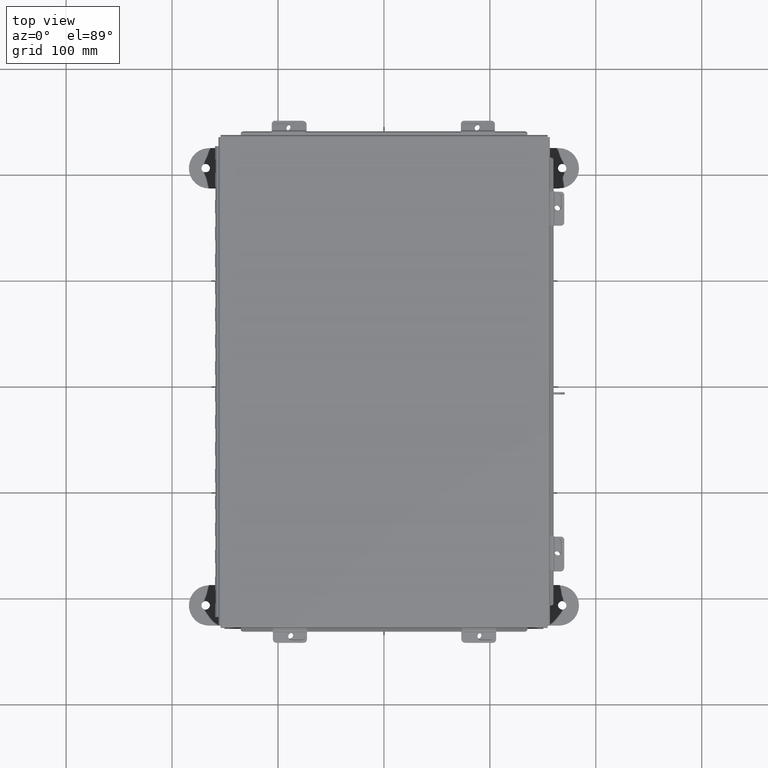
[diagram: clean part render]
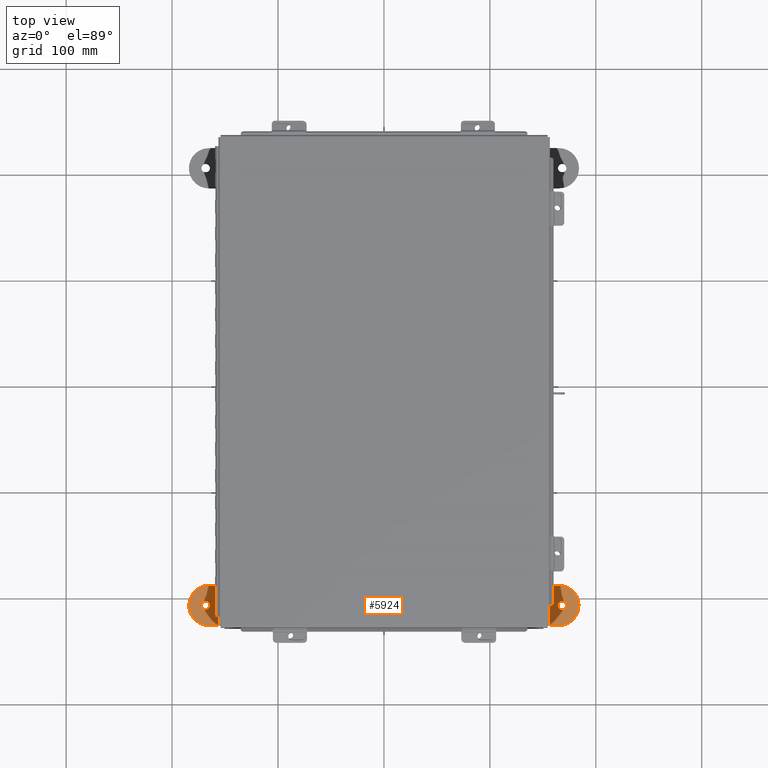
[diagram: same view with one face highlighted and labeled with its STEP entity id]
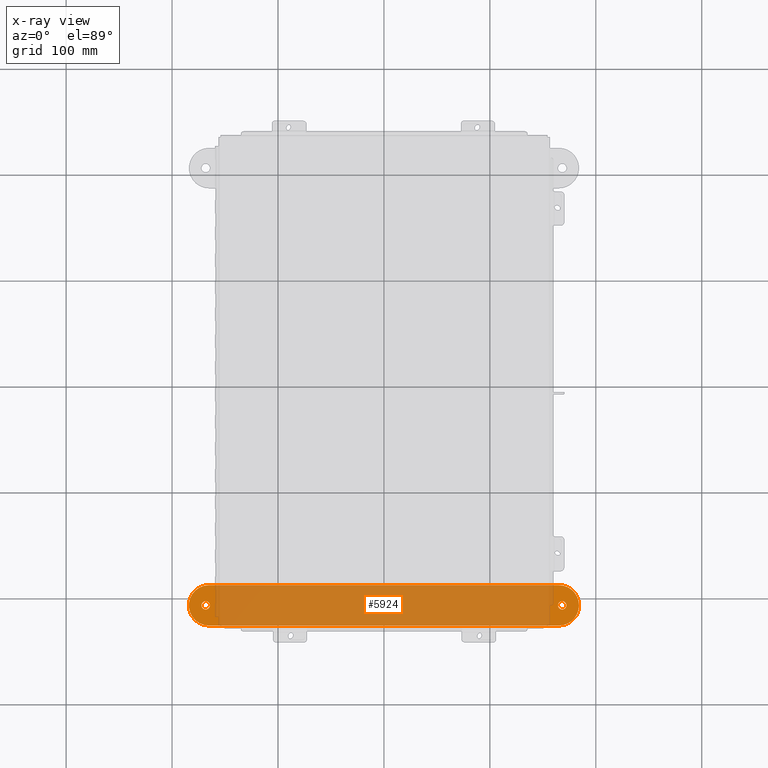
[diagram: x-ray of the same camera — body ghosted, the highlighted face saturated]
A machine part, top view. The second image highlights one B-rep face of the part: STEP entity #5924.
The next image is the same camera in x-ray: the body ghosted, the highlighted face saturated — about 89% of this face is hidden behind the body in this view.
In plain terms, the highlighted planar face has unit normal (0, 0, -1).
Its self-contained STEP definition (entity closure, byte-faithful):
#1440 = DIRECTION ( 'NONE',  ( -1.000000000000000000, 0.0000000000000000000, 0.0000000000000000000 ) ) ;
#1576 = CARTESIAN_POINT ( 'NONE',  ( 7.250000000000001800, 0.4120940649496122000, 0.0000000000000000000 ) ) ;
#1932 = CARTESIAN_POINT ( 'NONE',  ( 6.500000000000000000, 0.4120940649496122000, 0.0000000000000000000 ) ) ;
#2609 = DIRECTION ( 'NONE',  ( 0.0000000000000000000, 0.0000000000000000000, -1.000000000000000000 ) ) ;
#2762 = ORIENTED_EDGE ( 'NONE', *, *, #3056, .T. ) ;
#2858 = EDGE_CURVE ( 'NONE', #4962, #4669, #5933, .T. ) ;
#3029 = CIRCLE ( 'NONE', #17390, 0.7500000000000015500 ) ;
#3056 = EDGE_CURVE ( 'NONE', #18365, #15331, #4105, .T. ) ;
#3193 = EDGE_CURVE ( 'NONE', #3293, #17110, #8653, .T. ) ;
#3293 = VERTEX_POINT ( 'NONE', #3633 ) ;
#3471 = DIRECTION ( 'NONE',  ( -1.000000000000000000, 0.0000000000000000000, 0.0000000000000000000 ) ) ;
#3633 = CARTESIAN_POINT ( 'NONE',  ( -6.500000000000000000, -0.3379059350503871900, 0.0000000000000000000 ) ) ;
#3674 = CARTESIAN_POINT ( 'NONE',  ( 6.500000000000000000, -0.3379059350503894100, 0.0000000000000000000 ) ) ;
#3799 = ORIENTED_EDGE ( 'NONE', *, *, #10365, .T. ) ;
#3893 = CARTESIAN_POINT ( 'NONE',  ( -6.500000000000000000, 0.4120940649496122000, 0.0000000000000000000 ) ) ;
#4105 = CIRCLE ( 'NONE', #5367, 0.1564999999999992800 ) ;
#4435 = FACE_OUTER_BOUND ( 'NONE', #5103, .T. ) ;
#4495 = DIRECTION ( 'NONE',  ( -1.000000000000000000, 0.0000000000000000000, 0.0000000000000000000 ) ) ;
#4669 = VERTEX_POINT ( 'NONE', #14003 ) ;
#4784 = VECTOR ( 'NONE', #11639, 39.37007874015748100 ) ;
#4962 = VERTEX_POINT ( 'NONE', #10996 ) ;
#4978 = AXIS2_PLACEMENT_3D ( 'NONE', #13459, #16309, #14205 ) ;
#5103 = EDGE_LOOP ( 'NONE', ( #17207, #3799, #11926, #14903, #13732 ) ) ;
#5367 = AXIS2_PLACEMENT_3D ( 'NONE', #11253, #14852, #3471 ) ;
#5413 = CIRCLE ( 'NONE', #7450, 0.1564999999999992800 ) ;
#5924 = ADVANCED_FACE ( 'NONE', ( #4435, #12240, #15704 ), #12407, .F. ) ;
#5927 = CARTESIAN_POINT ( 'NONE',  ( -6.500000000000000000, -0.3379059350503871900, 0.0000000000000000000 ) ) ;
#5933 = CIRCLE ( 'NONE', #14558, 0.1564999999999992800 ) ;
#5944 = CARTESIAN_POINT ( 'NONE',  ( 6.468500000000001500, 0.4120940649496078200, 0.0000000000000000000 ) ) ;
#6035 = CIRCLE ( 'NONE', #6771, 0.7499999999999993300 ) ;
#6411 = DIRECTION ( 'NONE',  ( 1.000000000000000000, 0.0000000000000000000, 0.0000000000000000000 ) ) ;
#6617 = EDGE_CURVE ( 'NONE', #9677, #3293, #6035, .T. ) ;
#6686 = DIRECTION ( 'NONE',  ( 0.0000000000000000000, 0.0000000000000000000, 1.000000000000000000 ) ) ;
#6771 = AXIS2_PLACEMENT_3D ( 'NONE', #3893, #15210, #6411 ) ;
#6822 = DIRECTION ( 'NONE',  ( -1.000000000000000000, 0.0000000000000000000, 0.0000000000000000000 ) ) ;
#6895 = CIRCLE ( 'NONE', #11449, 0.7500000000000015500 ) ;
#6974 = CARTESIAN_POINT ( 'NONE',  ( 6.781499999999999400, 0.4120940649496078200, 0.0000000000000000000 ) ) ;
#7020 = ORIENTED_EDGE ( 'NONE', *, *, #17929, .F. ) ;
#7450 = AXIS2_PLACEMENT_3D ( 'NONE', #11172, #11961, #12299 ) ;
#7553 = CARTESIAN_POINT ( 'NONE',  ( -6.625000000000000900, 0.4120940649496078200, 0.0000000000000000000 ) ) ;
#7833 = DIRECTION ( 'NONE',  ( 1.000000000000000000, 0.0000000000000000000, 0.0000000000000000000 ) ) ;
#8329 = EDGE_CURVE ( 'NONE', #17110, #15628, #3029, .T. ) ;
#8653 = LINE ( 'NONE', #5927, #4784 ) ;
#9677 = VERTEX_POINT ( 'NONE', #18717 ) ;
#10181 = VECTOR ( 'NONE', #17409, 39.37007874015748100 ) ;
#10365 = EDGE_CURVE ( 'NONE', #15628, #16761, #6895, .T. ) ;
#10594 = CARTESIAN_POINT ( 'NONE',  ( -6.500000000000000000, 1.162094064949612800, 0.0000000000000000000 ) ) ;
#10996 = CARTESIAN_POINT ( 'NONE',  ( -6.781499999999999400, 0.4120940649496078200, 0.0000000000000000000 ) ) ;
#11094 = CARTESIAN_POINT ( 'NONE',  ( 6.500000000000000000, 0.4120940649496122000, 0.0000000000000000000 ) ) ;
#11172 = CARTESIAN_POINT ( 'NONE',  ( 6.625000000000000900, 0.4120940649496078200, 0.0000000000000000000 ) ) ;
#11227 = DIRECTION ( 'NONE',  ( 0.0000000000000000000, 0.0000000000000000000, 1.000000000000000000 ) ) ;
#11253 = CARTESIAN_POINT ( 'NONE',  ( 6.625000000000000900, 0.4120940649496078200, 0.0000000000000000000 ) ) ;
#11449 = AXIS2_PLACEMENT_3D ( 'NONE', #1932, #16661, #1440 ) ;
#11639 = DIRECTION ( 'NONE',  ( 1.000000000000000000, -1.260852920152736700E-016, 0.0000000000000000000 ) ) ;
#11926 = ORIENTED_EDGE ( 'NONE', *, *, #14163, .T. ) ;
#11961 = DIRECTION ( 'NONE',  ( 0.0000000000000000000, 0.0000000000000000000, -1.000000000000000000 ) ) ;
#12222 = ORIENTED_EDGE ( 'NONE', *, *, #2858, .F. ) ;
#12240 = FACE_BOUND ( 'NONE', #17528, .T. ) ;
#12299 = DIRECTION ( 'NONE',  ( -1.000000000000000000, 0.0000000000000000000, 0.0000000000000000000 ) ) ;
#12407 = PLANE ( 'NONE',  #18718 ) ;
#12870 = EDGE_LOOP ( 'NONE', ( #15846, #2762 ) ) ;
#13459 = CARTESIAN_POINT ( 'NONE',  ( -6.625000000000000900, 0.4120940649496078200, 0.0000000000000000000 ) ) ;
#13481 = EDGE_CURVE ( 'NONE', #15331, #18365, #5413, .T. ) ;
#13732 = ORIENTED_EDGE ( 'NONE', *, *, #3193, .T. ) ;
#14003 = CARTESIAN_POINT ( 'NONE',  ( -6.468500000000001500, 0.4120940649496078200, 0.0000000000000000000 ) ) ;
#14163 = EDGE_CURVE ( 'NONE', #16761, #9677, #14569, .T. ) ;
#14205 = DIRECTION ( 'NONE',  ( 1.000000000000000000, 0.0000000000000000000, 0.0000000000000000000 ) ) ;
#14558 = AXIS2_PLACEMENT_3D ( 'NONE', #7553, #6686, #7833 ) ;
#14569 = LINE ( 'NONE', #10594, #10181 ) ;
#14852 = DIRECTION ( 'NONE',  ( 0.0000000000000000000, 0.0000000000000000000, -1.000000000000000000 ) ) ;
#14903 = ORIENTED_EDGE ( 'NONE', *, *, #6617, .T. ) ;
#14922 = CARTESIAN_POINT ( 'NONE',  ( 6.500000000000000000, 0.4120940649496122000, 0.0000000000000000000 ) ) ;
#15210 = DIRECTION ( 'NONE',  ( 0.0000000000000000000, 0.0000000000000000000, 1.000000000000000000 ) ) ;
#15331 = VERTEX_POINT ( 'NONE', #6974 ) ;
#15532 = CARTESIAN_POINT ( 'NONE',  ( 6.500000000000000000, 1.162094064949613600, 0.0000000000000000000 ) ) ;
#15628 = VERTEX_POINT ( 'NONE', #1576 ) ;
#15704 = FACE_BOUND ( 'NONE', #12870, .T. ) ;
#15846 = ORIENTED_EDGE ( 'NONE', *, *, #13481, .T. ) ;
#16309 = DIRECTION ( 'NONE',  ( 0.0000000000000000000, 0.0000000000000000000, 1.000000000000000000 ) ) ;
#16661 = DIRECTION ( 'NONE',  ( 0.0000000000000000000, 0.0000000000000000000, 1.000000000000000000 ) ) ;
#16761 = VERTEX_POINT ( 'NONE', #15532 ) ;
#17110 = VERTEX_POINT ( 'NONE', #3674 ) ;
#17207 = ORIENTED_EDGE ( 'NONE', *, *, #8329, .T. ) ;
#17390 = AXIS2_PLACEMENT_3D ( 'NONE', #11094, #11227, #6822 ) ;
#17409 = DIRECTION ( 'NONE',  ( -1.000000000000000000, -1.260852920152736700E-016, 0.0000000000000000000 ) ) ;
#17528 = EDGE_LOOP ( 'NONE', ( #7020, #12222 ) ) ;
#17929 = EDGE_CURVE ( 'NONE', #4669, #4962, #18417, .T. ) ;
#18365 = VERTEX_POINT ( 'NONE', #5944 ) ;
#18417 = CIRCLE ( 'NONE', #4978, 0.1564999999999992800 ) ;
#18717 = CARTESIAN_POINT ( 'NONE',  ( -6.500000000000000000, 1.162094064949612800, 0.0000000000000000000 ) ) ;
#18718 = AXIS2_PLACEMENT_3D ( 'NONE', #14922, #2609, #4495 ) ;